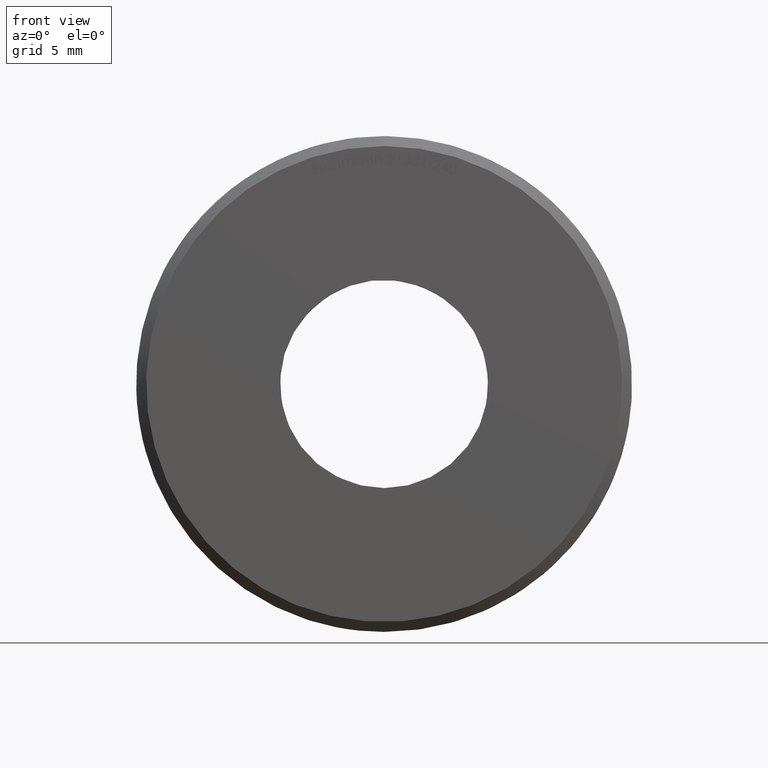
[diagram: clean part render]
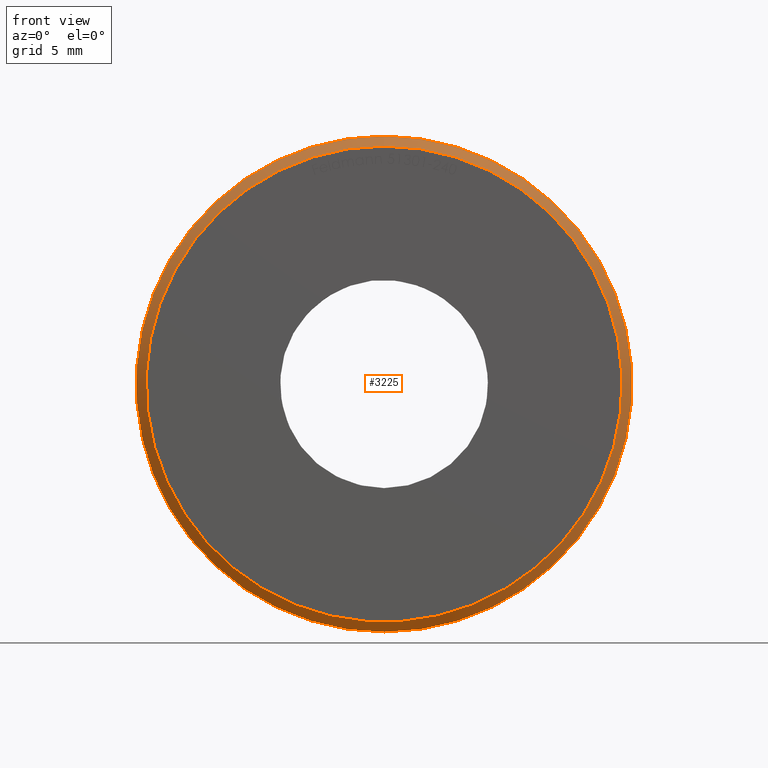
[diagram: same view with one face highlighted and labeled with its STEP entity id]
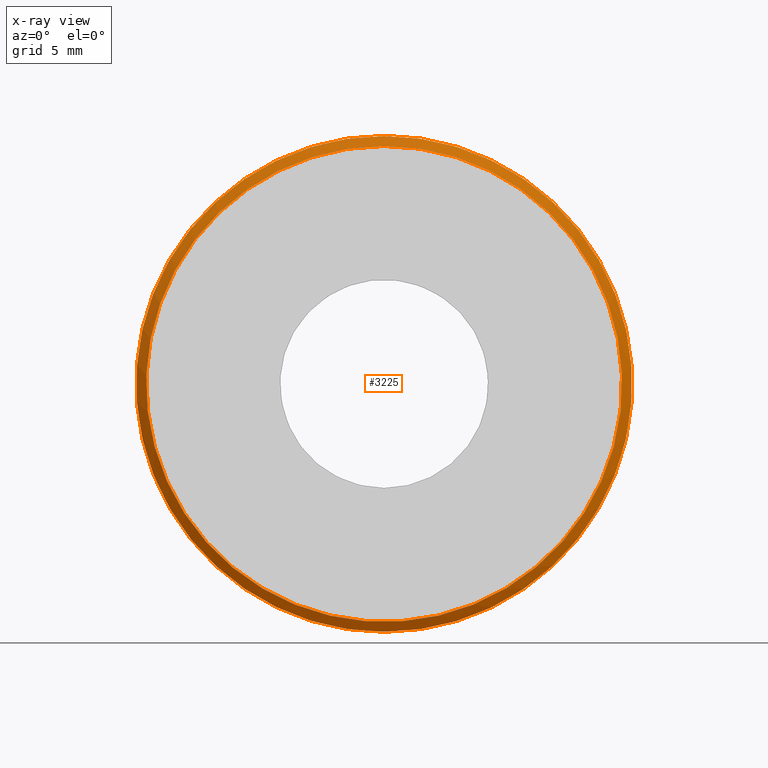
[diagram: x-ray of the same camera — body ghosted, the highlighted face saturated]
A machine part, front view. The second image highlights one B-rep face of the part: STEP entity #3225.
The next image is the same camera in x-ray: the body ghosted, the highlighted face saturated — about 0% of this face is hidden behind the body in this view.
In plain terms, the highlighted conical surface has half-angle 45 deg.
Its self-contained STEP definition (entity closure, byte-faithful):
#38 = AXIS2_PLACEMENT_3D ( 'NONE', #4873, #10586, #1114 ) ;
#875 = CARTESIAN_POINT ( 'NONE',  ( 0.000000000000000000, 0.4999999999999952260, 0.000000000000000000 ) ) ;
#915 = VERTEX_POINT ( 'NONE', #4738 ) ;
#1114 = DIRECTION ( 'NONE',  ( 0.000000000000000000, 0.000000000000000000, 1.000000000000000000 ) ) ;
#1573 = CARTESIAN_POINT ( 'NONE',  ( 0.000000000000000000, 0.000000000000000000, 0.000000000000000000 ) ) ;
#2450 = AXIS2_PLACEMENT_3D ( 'NONE', #1573, #4385, #3543 ) ;
#2839 = CARTESIAN_POINT ( 'NONE',  ( 0.000000000000000000, 0.4999999999999952260, 12.50000000000000000 ) ) ;
#3225 = ADVANCED_FACE ( 'NONE', ( #6323, #8678 ), #9141, .T. ) ;
#3543 = DIRECTION ( 'NONE',  ( 0.000000000000000000, 0.000000000000000000, 1.000000000000000000 ) ) ;
#4385 = DIRECTION ( 'NONE',  ( -0.000000000000000000, -1.000000000000000000, -0.000000000000000000 ) ) ;
#4738 = CARTESIAN_POINT ( 'NONE',  ( 0.000000000000000000, 0.000000000000000000, 12.00000000000000178 ) ) ;
#4873 = CARTESIAN_POINT ( 'NONE',  ( 0.000000000000000000, 0.4999999999999952260, 0.000000000000000000 ) ) ;
#5494 = VERTEX_POINT ( 'NONE', #2839 ) ;
#5665 = DIRECTION ( 'NONE',  ( 0.000000000000000000, 0.000000000000000000, 1.000000000000000000 ) ) ;
#6323 = FACE_BOUND ( 'NONE', #7965, .T. ) ;
#6981 = EDGE_CURVE ( 'NONE', #915, #915, #8468, .T. ) ;
#7156 = EDGE_CURVE ( 'NONE', #5494, #5494, #10397, .T. ) ;
#7965 = EDGE_LOOP ( 'NONE', ( #8430 ) ) ;
#8098 = EDGE_LOOP ( 'NONE', ( #10320 ) ) ;
#8430 = ORIENTED_EDGE ( 'NONE', *, *, #6981, .F. ) ;
#8468 = CIRCLE ( 'NONE', #2450, 12.00000000000000178 ) ;
#8678 = FACE_OUTER_BOUND ( 'NONE', #8098, .T. ) ;
#9141 = CONICAL_SURFACE ( 'NONE', #11816, 12.50000000000000000, 0.7853981633974517207 ) ;
#10320 = ORIENTED_EDGE ( 'NONE', *, *, #7156, .F. ) ;
#10397 = CIRCLE ( 'NONE', #38, 12.50000000000000000 ) ;
#10586 = DIRECTION ( 'NONE',  ( -0.000000000000000000, 1.000000000000000000, -0.000000000000000000 ) ) ;
#11293 = DIRECTION ( 'NONE',  ( -0.000000000000000000, 1.000000000000000000, -0.000000000000000000 ) ) ;
#11816 = AXIS2_PLACEMENT_3D ( 'NONE', #875, #11293, #5665 ) ;